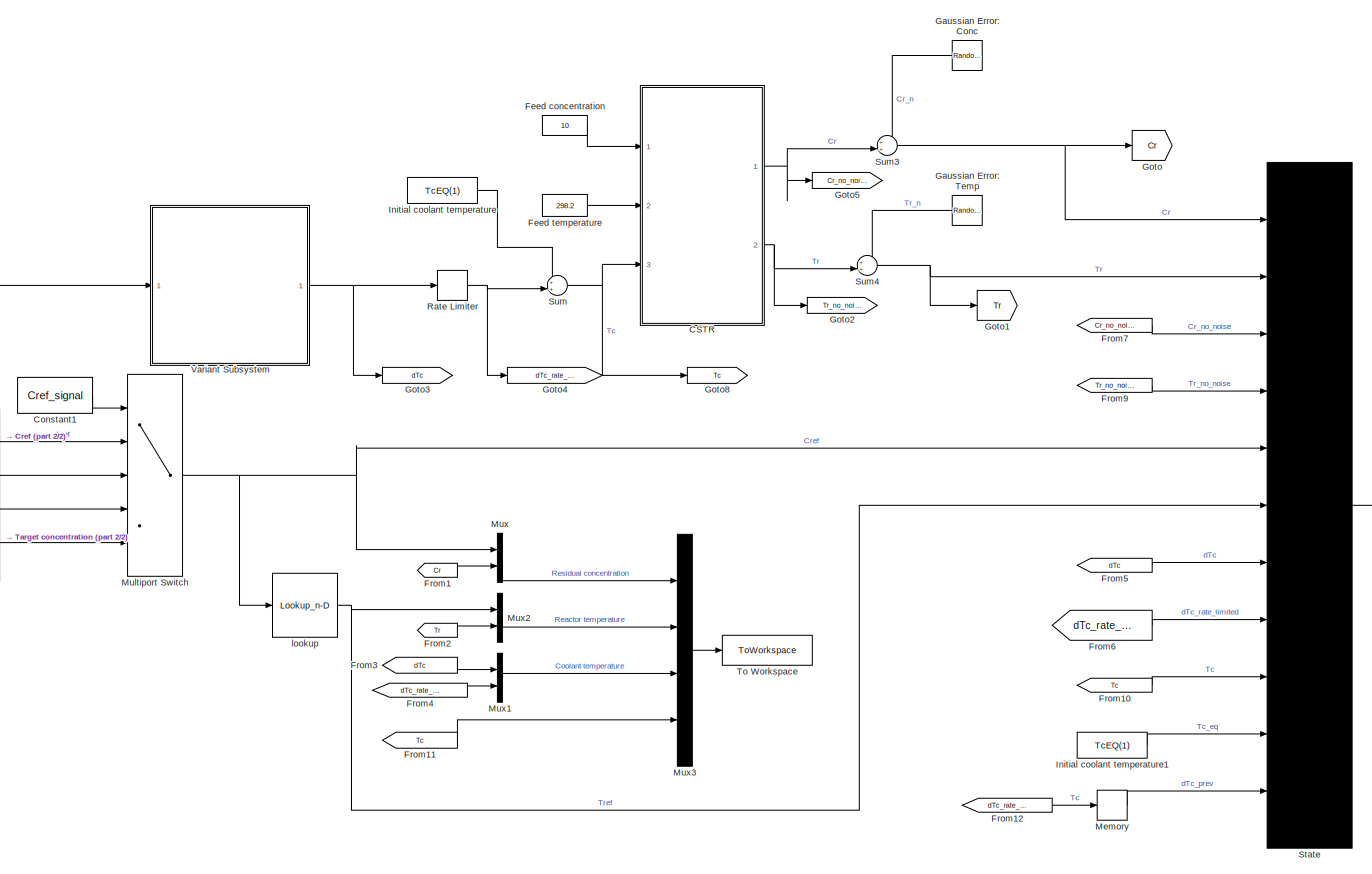
[diagram: root canvas - part 1/2, most of the canvas]
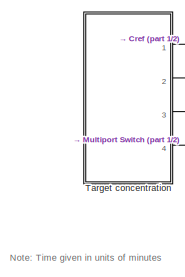
[diagram: root canvas - part 2/2, middle left region]
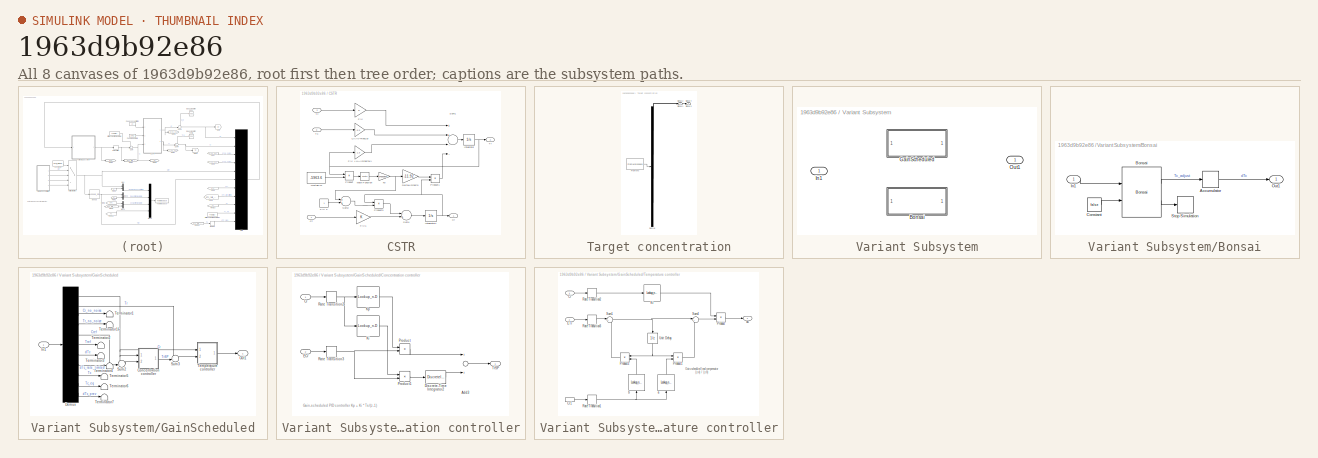
[diagram: thumbnail index - all 8 canvases of the model, root first then tree order]
MODEL slx_1963d9b92e86
KIND model
CONFIG AbsTol = auto
CONFIG EnableMultiTasking = on
CONFIG FixedStep = Ts
CONFIG MaxStep = auto
CONFIG MinStep = auto
CONFIG PreLoadFcn = Ts = 0.5;\nload CSTRData
CONFIG RelTol = 1e-3
CONFIG SampleTimeConstraint = Unconstrained
CONFIG Solver = FixedStepAuto
CONFIG SolverName = FixedStepAuto
CONFIG StartTime = 0
CONFIG StopTime = 45
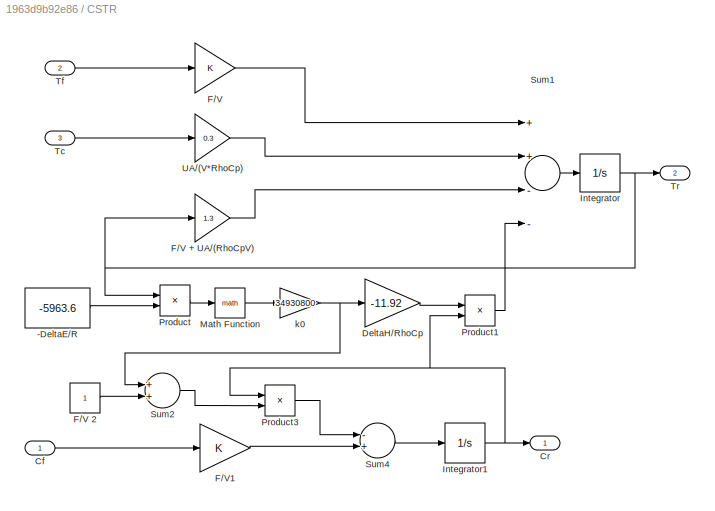
BLOCK [SubSystem] CSTR
  Ports = [3, 2]
  RequestExecContextInheritance = off
BLOCK [Constant] CSTR/-DeltaE//R
  SampleTime = 0
  Value = -5963.6
BLOCK [Inport] CSTR/Cf
  IconDisplay = Port number
BLOCK [Outport] CSTR/Cr
  IconDisplay = Port number
BLOCK [Gain] CSTR/DeltaH//RhoCp
  Gain = -11.92
BLOCK [Gain] CSTR/F//V
BLOCK [Gain] CSTR/F//V + UA//(RhoCpV)
  Gain = 1.3
BLOCK [Constant] CSTR/F//V 2
  SampleTime = 0
BLOCK [Gain] CSTR/F//V1
BLOCK [Integrator] CSTR/Integrator
  InitialCondition = TrEQ(1)
  LimitOutput = on
  LowerSaturationLimit = 0
  Ports = [1, 1]
BLOCK [Integrator] CSTR/Integrator1
  InitialCondition = CrEQ(1)
  LimitOutput = on
  LowerSaturationLimit = 0
  Ports = [1, 1]
BLOCK [Math] CSTR/Math Function
  Ports = [1, 1]
BLOCK [Product] CSTR/Product
  Inputs = /*
  Ports = [2, 1]
BLOCK [Product] CSTR/Product1
  Ports = [2, 1]
BLOCK [Product] CSTR/Product3
  Ports = [2, 1]
BLOCK [Sum] CSTR/Sum1
  Inputs = ++--
  Ports = [4, 1]
BLOCK [Sum] CSTR/Sum2
  Ports = [2, 1]
BLOCK [Sum] CSTR/Sum4
  Inputs = -+
  Ports = [2, 1]
BLOCK [Inport] CSTR/Tc
  IconDisplay = Port number
  Port = 3
BLOCK [Inport] CSTR/Tf
  IconDisplay = Port number
  Port = 2
BLOCK [Outport] CSTR/Tr
  IconDisplay = Port number
  Port = 2
BLOCK [Gain] CSTR/UA//(V*RhoCp)
  Gain = 0.3
BLOCK [Gain] CSTR/k0
  Gain = 34930800
BLOCK [Constant] Constant1
  Value = Cref_signal
BLOCK [Constant] Feed concentration
  SampleTime = 0
  Value = 10
BLOCK [Constant] Feed temperature
  SampleTime = 0
  Value = 298.2
BLOCK [From] From1
  GotoTag = Cr
BLOCK [From] From10
  GotoTag = Tc
BLOCK [From] From11
  GotoTag = Tc
BLOCK [From] From12
  GotoTag = dTc_rate_limited
BLOCK [From] From2
  GotoTag = Tr
BLOCK [From] From3
  GotoTag = dTc
BLOCK [From] From4
  GotoTag = dTc_rate_limited
BLOCK [From] From5
  GotoTag = dTc
BLOCK [From] From6
  GotoTag = dTc_rate_limited
BLOCK [From] From7
  GotoTag = Cr_no_noise
  TagVisibility = global
BLOCK [From] From9
  GotoTag = Tr_no_noise
BLOCK [RandomNumber] Gaussian Error: Conc
  SampleTime = Ts
  Seed = randi(100)
  Variance = conc_noise*conc_noise
BLOCK [RandomNumber] Gaussian Error: Temp
  SampleTime = Ts
  Seed = randi(100)
  Variance = temp_noise*temp_noise
BLOCK [Goto] Goto
  GotoTag = Cr
BLOCK [Goto] Goto1
  GotoTag = Tr
BLOCK [Goto] Goto2
  GotoTag = Tr_no_noise
BLOCK [Goto] Goto3
  GotoTag = dTc
BLOCK [Goto] Goto4
  GotoTag = dTc_rate_limited
BLOCK [Goto] Goto5
  GotoTag = Cr_no_noise
  TagVisibility = global
BLOCK [Goto] Goto8
  GotoTag = Tc
BLOCK [Constant] Initial coolant temperature
  SampleTime = 0
  Value = TcEQ(1)
BLOCK [Constant] Initial coolant temperature1
  SampleTime = 0
  Value = TcEQ(1)
BLOCK [Memory] Memory
BLOCK [MultiPortSwitch] Multiport Switch
  InputSameDT = off
  Inputs = 4
  Ports = [5, 1]
  SaturateOnIntegerOverflow = off
BLOCK [Mux] Mux
  DisplayOption = bar
  Inputs = 2
  Ports = [2, 1]
BLOCK [Mux] Mux1
  DisplayOption = bar
  Inputs = 2
  Ports = [2, 1]
BLOCK [Mux] Mux2
  DisplayOption = bar
  Inputs = 2
  Ports = [2, 1]
BLOCK [Mux] Mux3
  DisplayOption = bar
  Ports = [4, 1]
BLOCK [RateLimiter] Rate Limiter
  FallingSlewLimit = -10
  RisingSlewLimit = 10
  SampleTimeMode = inherited
BLOCK [Mux] State
  DisplayOption = signals
  Inputs = 11
  Ports = [11, 1]
BLOCK [Sum] Sum
  IconShape = round
  InputSameDT = off
  Inputs = ++|
  OutDataTypeStr = Inherit: Inherit via internal rule
  Ports = [2, 1]
  SaturateOnIntegerOverflow = off
BLOCK [Sum] Sum3
  IconShape = round
  InputSameDT = off
  Inputs = ++|
  OutDataTypeStr = Inherit: Inherit via internal rule
  Ports = [2, 1]
  SaturateOnIntegerOverflow = off
BLOCK [Sum] Sum4
  IconShape = round
  InputSameDT = off
  Inputs = ++|
  OutDataTypeStr = Inherit: Inherit via internal rule
  Ports = [2, 1]
  SaturateOnIntegerOverflow = off
BLOCK [SubSystem] Target concentration
  ClipboardFcn = sigbuilder_block('clipboard');
  CloseFcn = sigbuilder_block('close');
  ContinueFcn = sigbuilder_block('continue');
  CopyFcn = sigbuilder_block('copy');
  DeleteFcn = sigbuilder_block('delete');
  LoadFcn = sigbuilder_block('load');
  MaskHideContents = on
  ModelCloseFcn = sigbuilder_block('modelClose');
  NameChangeFcn = sigbuilder_block('namechange');
  OpenFcn = sigbuilder_block('open',[409.5 169.875 550.5 359.625 ]);
  PauseFcn = sigbuilder_block('pause');
  Ports = [0, 4]
  PreSaveFcn = sigbuilder_block('preSave');
  RequestExecContextInheritance = off
  StartFcn = sigbuilder_block('start');
  StopFcn = sigbuilder_block('stop');
  Tag = STV Subsys
BLOCK [Demux] Target concentration/Demux
  Ports = [1, 4]
  Tag = STV Demux
BLOCK [FromWorkspace] Target concentration/FromWs
  SampleTime = 0
  Tag = STV FromWs
  VariableName = tuvar
  ZeroCross = on
BLOCK [Outport] Target concentration/Signal 1
  IconDisplay = Port number
  Tag = STV Outport
BLOCK [Outport] Target concentration/Signal 2
  IconDisplay = Port number
  Port = 2
  Tag = STV Outport
BLOCK [Outport] Target concentration/Signal 3
  IconDisplay = Port number
  Port = 3
  Tag = STV Outport
BLOCK [Outport] Target concentration/Signal 4
  IconDisplay = Port number
  Port = 4
  Tag = STV Outport
BLOCK [ToWorkspace] To Workspace
  FixptAsFi = on
  MaxDataPoints = inf
  Ports = [1]
  SampleTime = -1
  VariableName = simout
BLOCK [SubSystem] Variant Subsystem
  LabelModeActiveChoice = Bonsai
  Ports = [1, 1]
  RequestExecContextInheritance = off
  Variant = on
  VariantControlMode = Label
BLOCK [SubSystem] Variant Subsystem/Bonsai
  Ports = [1, 1]
  RequestExecContextInheritance = off
  VariantControl = Bonsai
BLOCK [DiscreteIntegrator] Variant Subsystem/Bonsai/Accumulator
  ICPrevOutput = DiscIntNeverNeededParam
  ICPrevScaledInput = DiscIntNeverNeededParam
  InitialConditionSetting = Auto
  IntegratorMethod = Integration: Backward Euler
  Ports = [1, 1]
  SampleTime = -1
  gainval = 1/Ts
BLOCK [Reference] Variant Subsystem/Bonsai/Bonsai  REF=bonsai_library/Bonsai
  Ports = [2, 2]
  SourceBlock = bonsai_library/Bonsai
  SourceProductName = Bonsai Toolbox
BLOCK [Constant] Variant Subsystem/Bonsai/Constant
  Value = false
BLOCK [Inport] Variant Subsystem/Bonsai/In1
  IconDisplay = Port number
BLOCK [Outport] Variant Subsystem/Bonsai/Out1
  IconDisplay = Port number
BLOCK [Stop] Variant Subsystem/Bonsai/Stop Simulation
BLOCK [SubSystem] Variant Subsystem/GainScheduled
  Ports = [1, 1]
  RequestExecContextInheritance = off
  VariantControl = GainScheduled
BLOCK [SubSystem] Variant Subsystem/GainScheduled/Concentration controller
  Ports = [2, 1]
  RequestExecContextInheritance = off
BLOCK [Sum] Variant Subsystem/GainScheduled/Concentration controller/Add3
  InputSameDT = off
  OutDataTypeStr = Inherit: Inherit via internal rule
  Ports = [2, 1]
  SaturateOnIntegerOverflow = off
BLOCK [Inport] Variant Subsystem/GainScheduled/Concentration controller/Cr
  IconDisplay = Port number
BLOCK [DiscreteIntegrator] Variant Subsystem/GainScheduled/Concentration controller/Discrete-Time Integrator2
  ICPrevOutput = DiscIntNeverNeededParam
  ICPrevScaledInput = DiscIntNeverNeededParam
  InitialCondition = TrEQ(1)
  Ports = [1, 1]
  SampleTime = Ts
BLOCK [Inport] Variant Subsystem/GainScheduled/Concentration controller/ECr
  IconDisplay = Port number
  Port = 2
BLOCK [Lookup_n-D] Variant Subsystem/GainScheduled/Concentration controller/Ki
  BreakpointsForDimension1 = Cr_vec
  InternalRulePriority = Speed
  LookupTableObject = ''
  NumberOfTableDimensions = 1
  Ports = [1, 1]
  RndMeth = Simplest
  Table = Ki_vec
BLOCK [Lookup_n-D] Variant Subsystem/GainScheduled/Concentration controller/Kp
  BreakpointsForDimension1 = Cr_vec
  InternalRulePriority = Speed
  LookupTableObject = ''
  NumberOfTableDimensions = 1
  Ports = [1, 1]
  RndMeth = Simplest
  Table = Kp_vec
BLOCK [Product] Variant Subsystem/GainScheduled/Concentration controller/Product
  InputSameDT = off
  OutDataTypeStr = Inherit: Inherit via internal rule
  Ports = [2, 1]
  RndMeth = Floor
  SaturateOnIntegerOverflow = off
BLOCK [Product] Variant Subsystem/GainScheduled/Concentration controller/Product1
  InputSameDT = off
  OutDataTypeStr = Inherit: Inherit via internal rule
  Ports = [2, 1]
  RndMeth = Floor
  SaturateOnIntegerOverflow = off
BLOCK [RateTransition] Variant Subsystem/GainScheduled/Concentration controller/Rate Transition2
  OutPortSampleTime = Ts
BLOCK [RateTransition] Variant Subsystem/GainScheduled/Concentration controller/Rate Transition3
  OutPortSampleTime = Ts
BLOCK [Outport] Variant Subsystem/GainScheduled/Concentration controller/TrSP
  IconDisplay = Port number
BLOCK [Demux] Variant Subsystem/GainScheduled/Demux
  Outputs = 11
  Ports = [1, 11]
BLOCK [Inport] Variant Subsystem/GainScheduled/In1
  IconDisplay = Port number
BLOCK [Outport] Variant Subsystem/GainScheduled/Out1
  IconDisplay = Port number
BLOCK [Sum] Variant Subsystem/GainScheduled/Sum2
  IconShape = round
  InputSameDT = off
  Inputs = -+|
  OutDataTypeStr = Inherit: Inherit via internal rule
  Ports = [2, 1]
  SaturateOnIntegerOverflow = off
BLOCK [Sum] Variant Subsystem/GainScheduled/Sum3
  IconShape = round
  InputSameDT = off
  Inputs = -+|
  OutDataTypeStr = Inherit: Inherit via internal rule
  Ports = [2, 1]
  SaturateOnIntegerOverflow = off
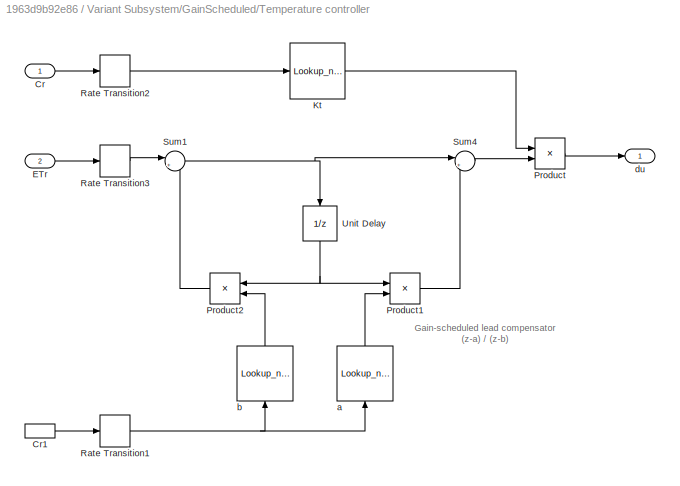
BLOCK [SubSystem] Variant Subsystem/GainScheduled/Temperature controller
  Ports = [2, 1]
  RequestExecContextInheritance = off
BLOCK [Inport] Variant Subsystem/GainScheduled/Temperature controller/Cr
  IconDisplay = Port number
BLOCK [InportShadow] Variant Subsystem/GainScheduled/Temperature controller/Cr1
  IconDisplay = Port number
BLOCK [Inport] Variant Subsystem/GainScheduled/Temperature controller/ETr
  IconDisplay = Port number
  Port = 2
BLOCK [Lookup_n-D] Variant Subsystem/GainScheduled/Temperature controller/Kt
  BreakpointsForDimension1 = Cr_vec
  InternalRulePriority = Speed
  LookupTableObject = ''
  NumberOfTableDimensions = 1
  Ports = [1, 1]
  RndMeth = Simplest
  Table = Kt_vec
BLOCK [Product] Variant Subsystem/GainScheduled/Temperature controller/Product
  InputSameDT = off
  OutDataTypeStr = Inherit: Inherit via internal rule
  Ports = [2, 1]
  RndMeth = Floor
  SaturateOnIntegerOverflow = off
BLOCK [Product] Variant Subsystem/GainScheduled/Temperature controller/Product1
  InputSameDT = off
  OutDataTypeStr = Inherit: Inherit via internal rule
  Ports = [2, 1]
  RndMeth = Floor
  SaturateOnIntegerOverflow = off
BLOCK [Product] Variant Subsystem/GainScheduled/Temperature controller/Product2
  InputSameDT = off
  OutDataTypeStr = Inherit: Inherit via internal rule
  Ports = [2, 1]
  RndMeth = Floor
  SaturateOnIntegerOverflow = off
BLOCK [RateTransition] Variant Subsystem/GainScheduled/Temperature controller/Rate Transition1
  OutPortSampleTime = Ts
BLOCK [RateTransition] Variant Subsystem/GainScheduled/Temperature controller/Rate Transition2
  OutPortSampleTime = Ts
BLOCK [RateTransition] Variant Subsystem/GainScheduled/Temperature controller/Rate Transition3
  OutPortSampleTime = Ts
BLOCK [Sum] Variant Subsystem/GainScheduled/Temperature controller/Sum1
  IconShape = round
  InputSameDT = off
  Inputs = |++
  OutDataTypeStr = Inherit: Inherit via internal rule
  Ports = [2, 1]
  SaturateOnIntegerOverflow = off
BLOCK [Sum] Variant Subsystem/GainScheduled/Temperature controller/Sum4
  IconShape = round
  InputSameDT = off
  Inputs = |+-
  OutDataTypeStr = Inherit: Inherit via internal rule
  Ports = [2, 1]
  SaturateOnIntegerOverflow = off
BLOCK [UnitDelay] Variant Subsystem/GainScheduled/Temperature controller/Unit Delay
  HasFrameUpgradeWarning = on
  SampleTime = Ts
BLOCK [Lookup_n-D] Variant Subsystem/GainScheduled/Temperature controller/a
  BreakpointsForDimension1 = Cr_vec
  InternalRulePriority = Speed
  LookupTableObject = ''
  NumberOfTableDimensions = 1
  Ports = [1, 1]
  RndMeth = Simplest
  Table = a_vec
BLOCK [Lookup_n-D] Variant Subsystem/GainScheduled/Temperature controller/b
  BreakpointsForDimension1 = Cr_vec
  InternalRulePriority = Speed
  LookupTableObject = ''
  NumberOfTableDimensions = 1
  Ports = [1, 1]
  RndMeth = Simplest
  Table = b_vec
BLOCK [Outport] Variant Subsystem/GainScheduled/Temperature controller/du
  IconDisplay = Port number
BLOCK [Terminator] Variant Subsystem/GainScheduled/Terminator1
BLOCK [Terminator] Variant Subsystem/GainScheduled/Terminator16
BLOCK [Terminator] Variant Subsystem/GainScheduled/Terminator2
BLOCK [Terminator] Variant Subsystem/GainScheduled/Terminator3
BLOCK [Terminator] Variant Subsystem/GainScheduled/Terminator4
BLOCK [Terminator] Variant Subsystem/GainScheduled/Terminator5
BLOCK [Terminator] Variant Subsystem/GainScheduled/Terminator6
BLOCK [Terminator] Variant Subsystem/GainScheduled/Terminator7
BLOCK [Inport] Variant Subsystem/In1
  IconDisplay = Port number
BLOCK [Outport] Variant Subsystem/Out1
  IconDisplay = Port number
BLOCK [Lookup_n-D] lookup
  BreakpointsForDimension1 = flipud(CrEQ)
  LookupTableObject = ''
  NumberOfTableDimensions = 1
  Ports = [1, 1]
  RndMeth = Simplest
  Table = flipud(TrEQ)
ANNOTATION (root): Note: Time given in units of minutes
ANNOTATION Variant Subsystem/GainScheduled/Concentration controller: Gain-scheduled PID controller Kp + Ki * Ts/(z-1)
ANNOTATION Variant Subsystem/GainScheduled/Temperature controller: Gain-scheduled lead compensator (z-a) / (z-b)
LINE CSTR/-DeltaE//R:1 -> CSTR/Product:2
LINE CSTR/Cf:1 -> CSTR/F//V1:1
LINE CSTR/DeltaH//RhoCp:1 -> CSTR/Product1:1
LINE CSTR/F//V + UA//(RhoCpV):1 -> CSTR/Sum1:3
LINE CSTR/F//V 2:1 -> CSTR/Sum2:2
LINE CSTR/F//V1:1 -> CSTR/Sum4:2
LINE CSTR/F//V:1 -> CSTR/Sum1:1
NET CSTR/Integrator1:1 -> CSTR/Cr:1, CSTR/Product1:2, CSTR/Product3:1
NET CSTR/Integrator:1 -> CSTR/F//V + UA//(RhoCpV):1, CSTR/Product:1, CSTR/Tr:1
LINE CSTR/Math Function:1 -> CSTR/k0:1
LINE CSTR/Product1:1 -> CSTR/Sum1:4
LINE CSTR/Product3:1 -> CSTR/Sum4:1
LINE CSTR/Product:1 -> CSTR/Math Function:1
LINE CSTR/Sum1:1 -> CSTR/Integrator:1
LINE CSTR/Sum2:1 -> CSTR/Product3:2
LINE CSTR/Sum4:1 -> CSTR/Integrator1:1
LINE CSTR/Tc:1 -> CSTR/UA//(V*RhoCp):1
LINE CSTR/Tf:1 -> CSTR/F//V:1
LINE CSTR/UA//(V*RhoCp):1 -> CSTR/Sum1:2
NET CSTR/k0:1 -> CSTR/DeltaH//RhoCp:1, CSTR/Sum2:1
NET CSTR:1 -> Goto5:1, Sum3:2
NET CSTR:2 -> Goto2:1, Sum4:2
LINE Constant1:1 -> Multiport Switch:1
LINE Feed concentration:1 -> CSTR:1
LINE Feed temperature:1 -> CSTR:2
LINE From10:1 -> State:9
LINE From11:1 -> Mux3:4
LINE From12:1 -> Memory:1
LINE From1:1 -> Mux:2
LINE From2:1 -> Mux2:2
LINE From3:1 -> Mux1:1
LINE From4:1 -> Mux1:2
LINE From5:1 -> State:7
LINE From6:1 -> State:8
LINE From7:1 -> State:3
LINE From9:1 -> State:4
LINE Gaussian Error: Conc:1 -> Sum3:1
LINE Gaussian Error: Temp:1 -> Sum4:1
LINE Initial coolant temperature1:1 -> State:10
LINE Initial coolant temperature:1 -> Sum:1
LINE Memory:1 -> State:11
NET Multiport Switch:1 -> Mux:1, State:5, lookup:1
LINE Mux1:1 -> Mux3:3
LINE Mux2:1 -> Mux3:2
LINE Mux3:1 -> To Workspace:1
LINE Mux:1 -> Mux3:1
NET Rate Limiter:1 -> Goto4:1, Sum:2
LINE State:1 -> Variant Subsystem:1
NET Sum3:1 -> Goto:1, State:1
NET Sum4:1 -> Goto1:1, State:2
NET Sum:1 -> CSTR:3, Goto8:1
LINE Target concentration:1 -> Multiport Switch:2
LINE Target concentration:2 -> Multiport Switch:3
LINE Target concentration:3 -> Multiport Switch:4
LINE Target concentration:4 -> Multiport Switch:5
LINE Variant Subsystem/Bonsai/Accumulator:1 -> Variant Subsystem/Bonsai/Out1:1
LINE Variant Subsystem/Bonsai/Bonsai:1 -> Variant Subsystem/Bonsai/Accumulator:1
LINE Variant Subsystem/Bonsai/Bonsai:2 -> Variant Subsystem/Bonsai/Stop Simulation:1
LINE Variant Subsystem/Bonsai/Constant:1 -> Variant Subsystem/Bonsai/Bonsai:2
LINE Variant Subsystem/Bonsai/In1:1 -> Variant Subsystem/Bonsai/Bonsai:1
LINE Variant Subsystem/GainScheduled/Concentration controller/Add3:1 -> Variant Subsystem/GainScheduled/Concentration controller/TrSP:1
LINE Variant Subsystem/GainScheduled/Concentration controller/Cr:1 -> Variant Subsystem/GainScheduled/Concentration controller/Rate Transition2:1
LINE Variant Subsystem/GainScheduled/Concentration controller/Discrete-Time Integrator2:1 -> Variant Subsystem/GainScheduled/Concentration controller/Add3:2
LINE Variant Subsystem/GainScheduled/Concentration controller/ECr:1 -> Variant Subsystem/GainScheduled/Concentration controller/Rate Transition3:1
LINE Variant Subsystem/GainScheduled/Concentration controller/Ki:1 -> Variant Subsystem/GainScheduled/Concentration controller/Product1:1
LINE Variant Subsystem/GainScheduled/Concentration controller/Kp:1 -> Variant Subsystem/GainScheduled/Concentration controller/Product:1
LINE Variant Subsystem/GainScheduled/Concentration controller/Product1:1 -> Variant Subsystem/GainScheduled/Concentration controller/Discrete-Time Integrator2:1
LINE Variant Subsystem/GainScheduled/Concentration controller/Product:1 -> Variant Subsystem/GainScheduled/Concentration controller/Add3:1
NET Variant Subsystem/GainScheduled/Concentration controller/Rate Transition2:1 -> Variant Subsystem/GainScheduled/Concentration controller/Ki:1, Variant Subsystem/GainScheduled/Concentration controller/Kp:1
NET Variant Subsystem/GainScheduled/Concentration controller/Rate Transition3:1 -> Variant Subsystem/GainScheduled/Concentration controller/Product1:2, Variant Subsystem/GainScheduled/Concentration controller/Product:2
LINE Variant Subsystem/GainScheduled/Concentration controller:1 -> Variant Subsystem/GainScheduled/Sum3:2
NET Variant Subsystem/GainScheduled/Demux:1 -> Variant Subsystem/GainScheduled/Concentration controller:1, Variant Subsystem/GainScheduled/Sum2:1, Variant Subsystem/GainScheduled/Temperature controller:1
LINE Variant Subsystem/GainScheduled/Demux:10 -> Variant Subsystem/GainScheduled/Terminator6:1
LINE Variant Subsystem/GainScheduled/Demux:11 -> Variant Subsystem/GainScheduled/Terminator7:1
LINE Variant Subsystem/GainScheduled/Demux:2 -> Variant Subsystem/GainScheduled/Sum3:1
LINE Variant Subsystem/GainScheduled/Demux:3 -> Variant Subsystem/GainScheduled/Terminator1:1
LINE Variant Subsystem/GainScheduled/Demux:4 -> Variant Subsystem/GainScheduled/Terminator16:1
LINE Variant Subsystem/GainScheduled/Demux:5 -> Variant Subsystem/GainScheduled/Sum2:2
LINE Variant Subsystem/GainScheduled/Demux:6 -> Variant Subsystem/GainScheduled/Terminator2:1
LINE Variant Subsystem/GainScheduled/Demux:7 -> Variant Subsystem/GainScheduled/Terminator3:1
LINE Variant Subsystem/GainScheduled/Demux:8 -> Variant Subsystem/GainScheduled/Terminator4:1
LINE Variant Subsystem/GainScheduled/Demux:9 -> Variant Subsystem/GainScheduled/Terminator5:1
LINE Variant Subsystem/GainScheduled/In1:1 -> Variant Subsystem/GainScheduled/Demux:1
LINE Variant Subsystem/GainScheduled/Sum2:1 -> Variant Subsystem/GainScheduled/Concentration controller:2
LINE Variant Subsystem/GainScheduled/Sum3:1 -> Variant Subsystem/GainScheduled/Temperature controller:2
LINE Variant Subsystem/GainScheduled/Temperature controller/Cr1:1 -> Variant Subsystem/GainScheduled/Temperature controller/Rate Transition1:1
LINE Variant Subsystem/GainScheduled/Temperature controller/Cr:1 -> Variant Subsystem/GainScheduled/Temperature controller/Rate Transition2:1
LINE Variant Subsystem/GainScheduled/Temperature controller/ETr:1 -> Variant Subsystem/GainScheduled/Temperature controller/Rate Transition3:1
LINE Variant Subsystem/GainScheduled/Temperature controller/Kt:1 -> Variant Subsystem/GainScheduled/Temperature controller/Product:1
LINE Variant Subsystem/GainScheduled/Temperature controller/Product1:1 -> Variant Subsystem/GainScheduled/Temperature controller/Sum4:2
LINE Variant Subsystem/GainScheduled/Temperature controller/Product2:1 -> Variant Subsystem/GainScheduled/Temperature controller/Sum1:2
LINE Variant Subsystem/GainScheduled/Temperature controller/Product:1 -> Variant Subsystem/GainScheduled/Temperature controller/du:1
NET Variant Subsystem/GainScheduled/Temperature controller/Rate Transition1:1 -> Variant Subsystem/GainScheduled/Temperature controller/a:1, Variant Subsystem/GainScheduled/Temperature controller/b:1
LINE Variant Subsystem/GainScheduled/Temperature controller/Rate Transition2:1 -> Variant Subsystem/GainScheduled/Temperature controller/Kt:1
LINE Variant Subsystem/GainScheduled/Temperature controller/Rate Transition3:1 -> Variant Subsystem/GainScheduled/Temperature controller/Sum1:1
NET Variant Subsystem/GainScheduled/Temperature controller/Sum1:1 -> Variant Subsystem/GainScheduled/Temperature controller/Sum4:1, Variant Subsystem/GainScheduled/Temperature controller/Unit Delay:1
LINE Variant Subsystem/GainScheduled/Temperature controller/Sum4:1 -> Variant Subsystem/GainScheduled/Temperature controller/Product:2
NET Variant Subsystem/GainScheduled/Temperature controller/Unit Delay:1 -> Variant Subsystem/GainScheduled/Temperature controller/Product1:1, Variant Subsystem/GainScheduled/Temperature controller/Product2:1
LINE Variant Subsystem/GainScheduled/Temperature controller/a:1 -> Variant Subsystem/GainScheduled/Temperature controller/Product1:2
LINE Variant Subsystem/GainScheduled/Temperature controller/b:1 -> Variant Subsystem/GainScheduled/Temperature controller/Product2:2
LINE Variant Subsystem/GainScheduled/Temperature controller:1 -> Variant Subsystem/GainScheduled/Out1:1
NET Variant Subsystem:1 -> Goto3:1, Rate Limiter:1
NET lookup:1 -> Mux2:1, State:6
note: NET lines group one-source signal fan-out (src -> all destinations, sorted); 1:1 wires keep LINE
